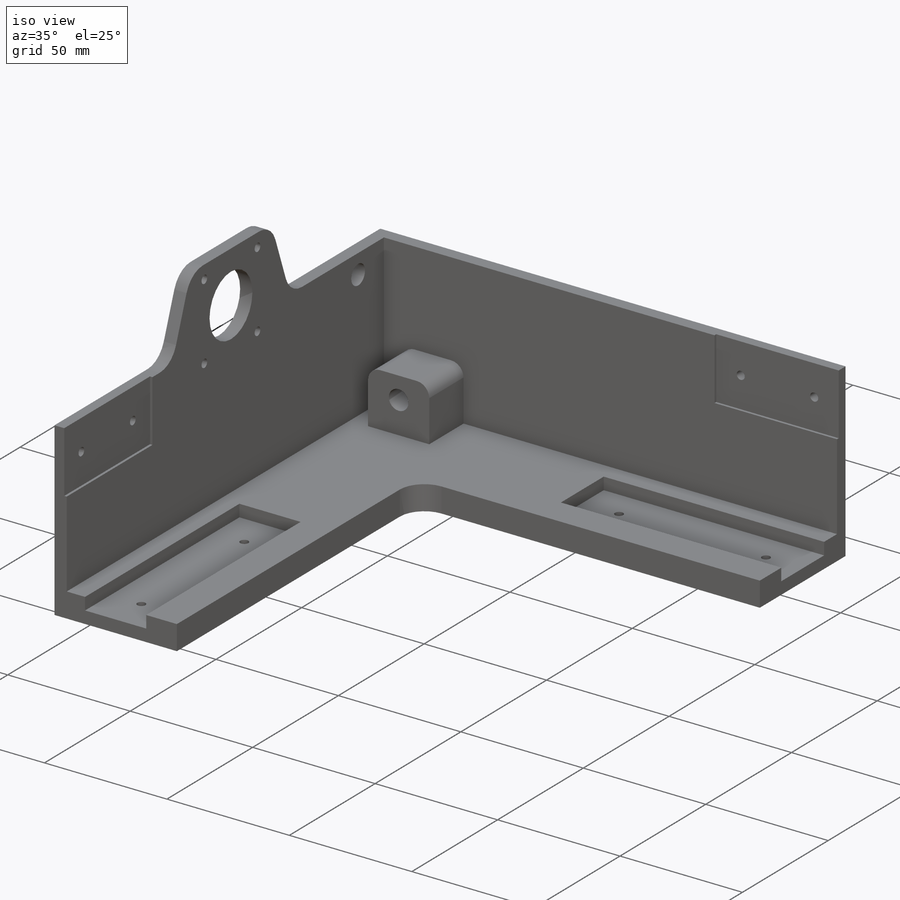
[diagram: iso view]
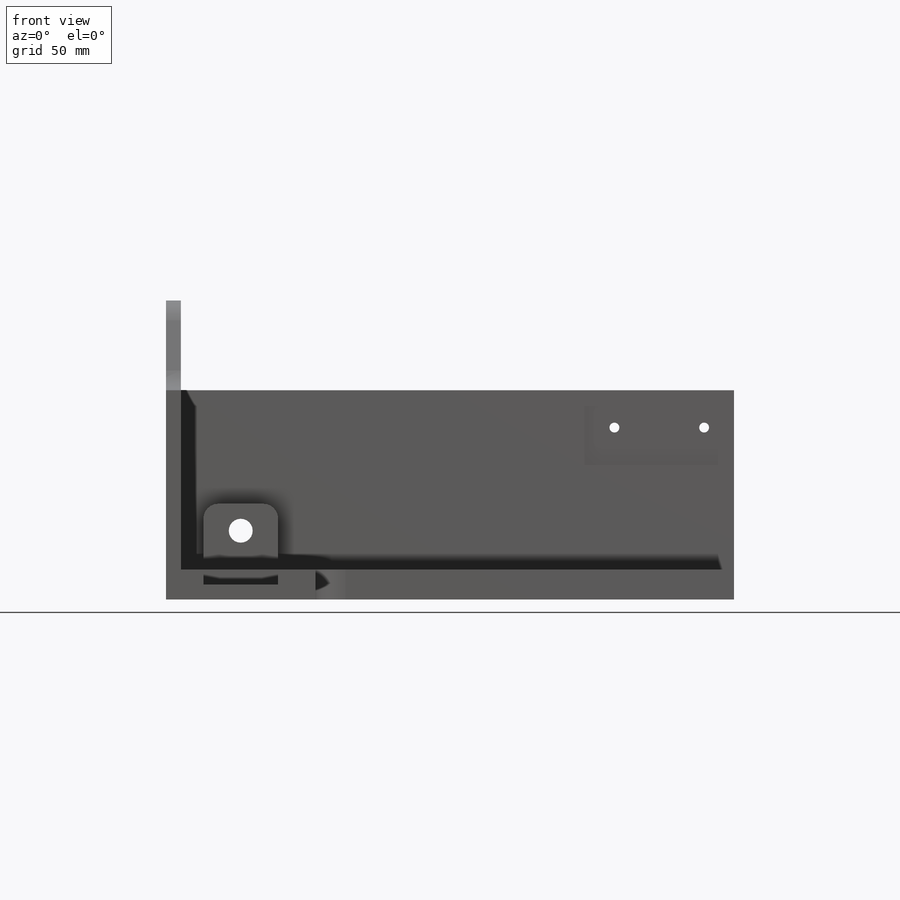
[diagram: front view]
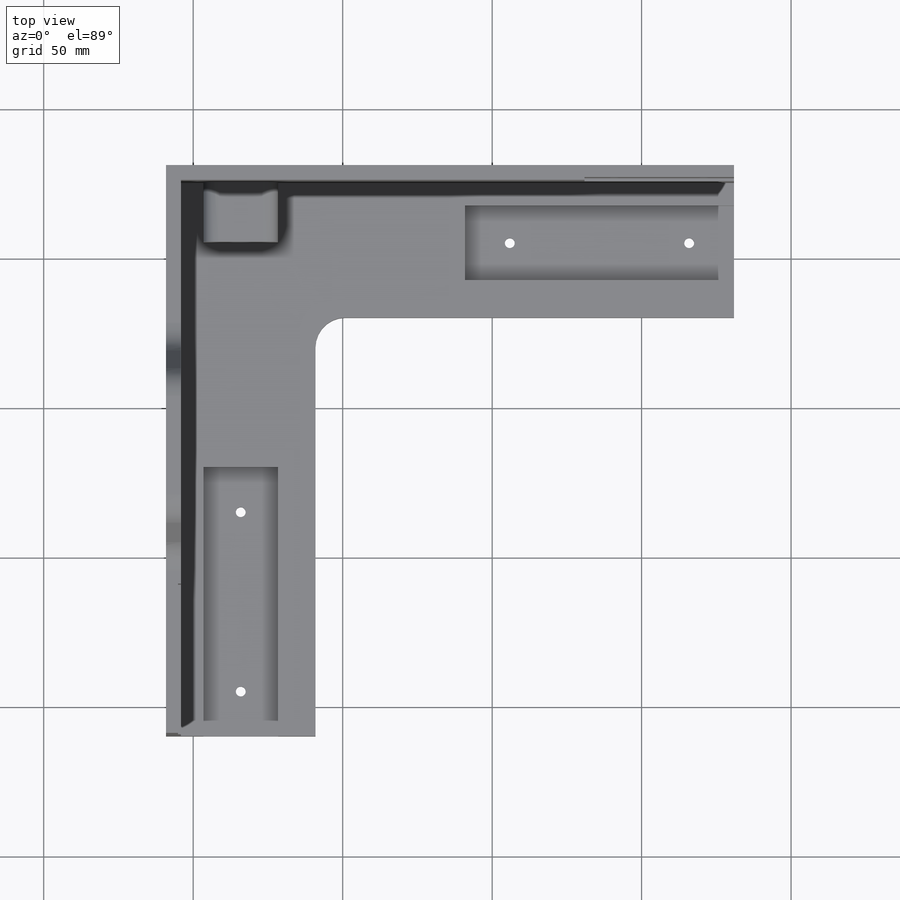
[diagram: top view]
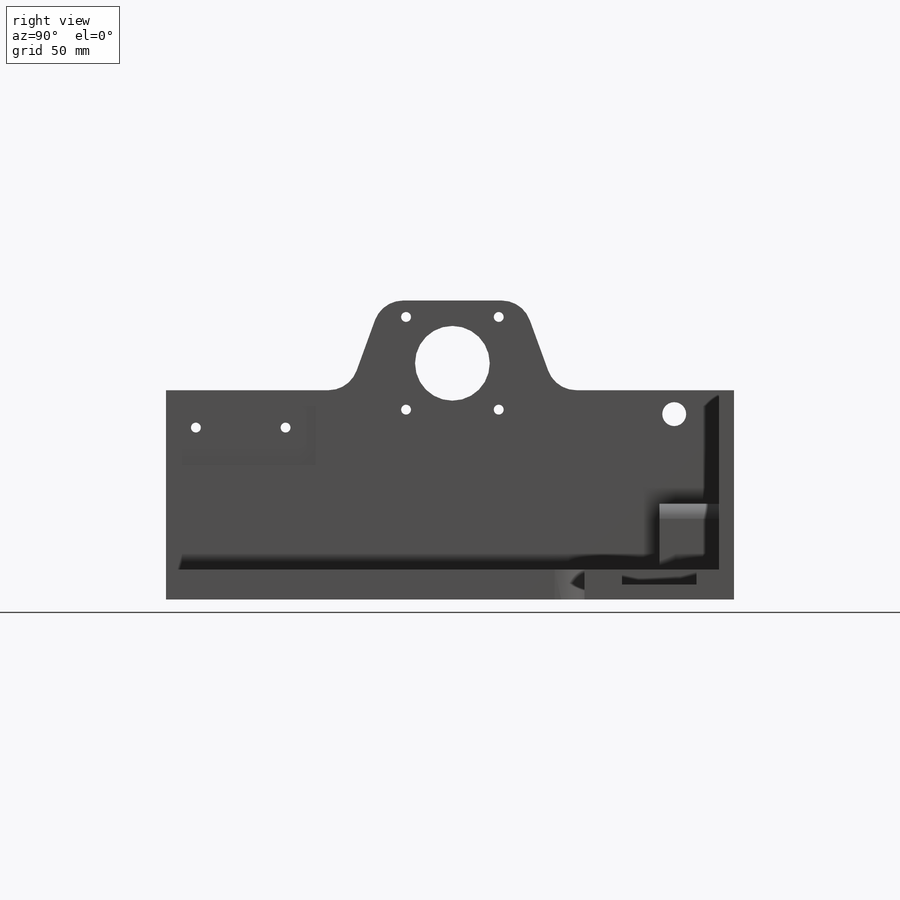
[diagram: right view]
SOLIDWORKS PART (.sldprt)
format: sldprt  version: not decoded by parser v0  size: 461,824 bytes
history: native  units: mm
features: sketch x14, cut_extrude x10, extrude x4, fillet x2, material x1 (+11 scaffold rows collapsed)
feature tree (42):
  scaffold x11  (default folders/planes/origin — collapsed)
  material  "Material <not specified>"
  sketch  "Sketch1"  dims[c1.D3=10.0mm c1.D1=~7.291665mm c1.D2=~66.232623mm c2.D1=~59.244777mm c2.D2=~8.810762mm c3.D1=50.0mm c3.D2=190.0mm c3.D3=~149.249863mm]
  extrude  "Boss-Extrude1"  Depth=10mm
  sketch  "Sketch2"  dims[c1.D1=~21.780926mm c1.D2=~72.833993mm c2.D1=~34.295976mm c2.D2=~20.019756mm c3.D1=30.0mm c3.D2=90.0mm c3.D3=30.0mm c3.D4=25.0mm c3.D5=~54.652913mm c3.D6=~26.379824mm c4.D5=~28.417762mm c4.D6=~39.08961mm c5.D5=90.0mm c5.D6=~17.637746mm c5.D7=~53.329208mm c6.D6=30.0mm c6.D7=30.0mm c6.D8=~29.747077mm c7.D8=90.0deg c8.D8=25.0mm]
  cut_extrude  "Cut-Extrude1"  Depth=5mm
  sketch  "Sketch3"  dims[D1=3.3mm D2=15.0mm D3=15.0mm D4=15.0mm D5=15.0mm]
  cut_extrude  "Cut-Extrude2"  [1 undecoded]
  sketch  "Sketch4"  dims[c1.D1=~13.486013mm c1.D2=~20.219518mm c2.D1=25.0mm c2.D2=25.0mm c2.D3=12.5mm]
  extrude  "Boss-Extrude2"  Depth=22mm
  sketch  "Sketch5"  dims[D1=8.0mm D2=13.0mm]
  cut_extrude  "Cut-Extrude3"  [1 undecoded]
  fillet  "Fillet1"  Radius=5mm
  sketch  "Sketch6"  dims[c1.D1=~46.647037mm c1.D2=~181.344046mm c2.D1=90.0mm c2.D2=190.0mm]
  extrude  "Boss-Extrude3"  Depth=5mm
  sketch  "Sketch7"  dims[c1.D2=~24.724533mm c1.D3=22.0mm c1.D4=8.0mm c1.D6=25.0mm c1.D7=3.3mm c1.D8=3.3mm c1.D1=41.0mm c2.D2=9.0mm c2.D5=~32.897754mm c2.D6=~30.564721mm c3.D5=~36.609454mm c3.D6=~3.156937mm c4.D5=42.0mm c4.D6=42.0mm c4.D8=31.0mm c4.D9=31.0mm c4.D10=7.0mm]
  cut_extrude  "Cut-Extrude4"  [1 undecoded]
  sketch  "Sketch8"  dims[c1.D1=6.25mm c1.D2=185.0mm c2.D1=5.0mm]
  extrude  "Boss-Extrude4"  Depth=60mm
  sketch  "Sketch9"  dims[D1=~12.908737mm]
  cut_extrude  "Cut-Extrude5"  [1 undecoded]
  sketch  "Sketch10"  dims[c1.D1=3.3mm c1.D2=3.3mm c2.D1=8.0mm c2.D2=8.0mm c2.D3=~36.425631mm c3.D3=110.0deg c3.D4=30.0mm c4.D4=110.0deg]
  cut_extrude  "Cut-Extrude6"  [1 undecoded]
  fillet  "Fillet2"  Radius=10mm
  sketch  "Sketch11"  dims[c1.D1=~19.444291mm c1.D2=~86.425832mm c2.D1=25.0mm c2.D2=50.0mm]
  cut_extrude  "Cut-Extrude7"  Depth=1mm
  sketch  "Sketch12"  dims[c1.D1=3.3mm c1.D2=3.3mm c1.D3=3.3mm c2.D2=10.0mm c2.D3=10.0mm]
  cut_extrude  "Cut-Extrude8"  [1 undecoded]
  sketch  "Sketch13"  dims[c1.D1=~23.727894mm c1.D2=~49.293247mm c2.D1=50.0mm c2.D2=25.0mm]
  cut_extrude  "Cut-Extrude9"  Depth=1mm
  sketch  "Sketch14"  dims[c1.D1=3.3mm c1.D2=3.3mm c1.D3=3.3mm c2.D2=10.0mm c2.D3=10.0mm]
  cut_extrude  "Cut-Extrude10"  [1 undecoded]
decode coverage: 23 of 30 modeling features carry decoded parameters
note: ~ marks probable driven/reference dimensions
note: 7 parameter values undecoded
summary: no parameter record found for 7 features
note: suppression state not decoded; provenance and decode notes live in map.json
